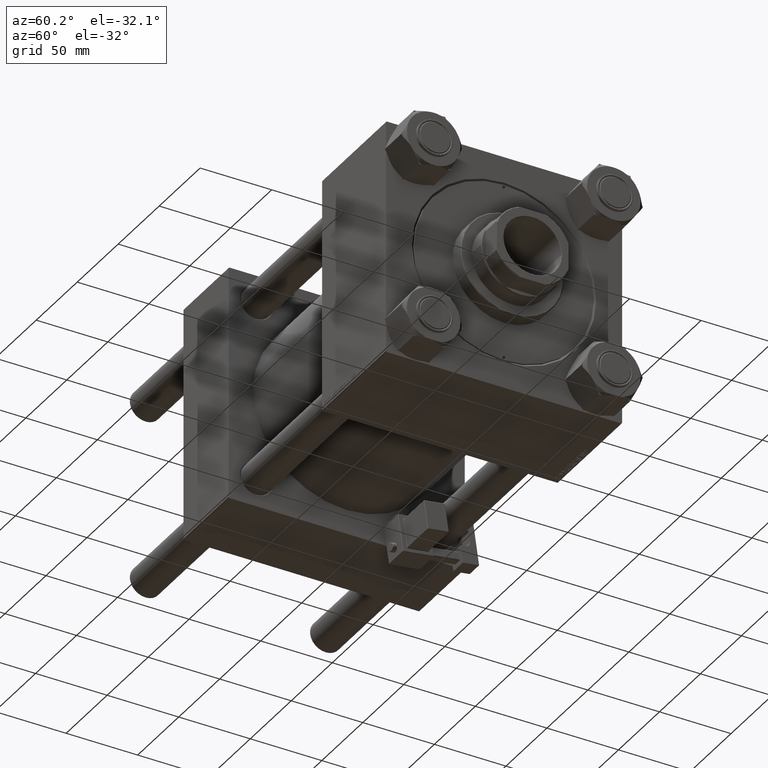
[diagram: clean part render]
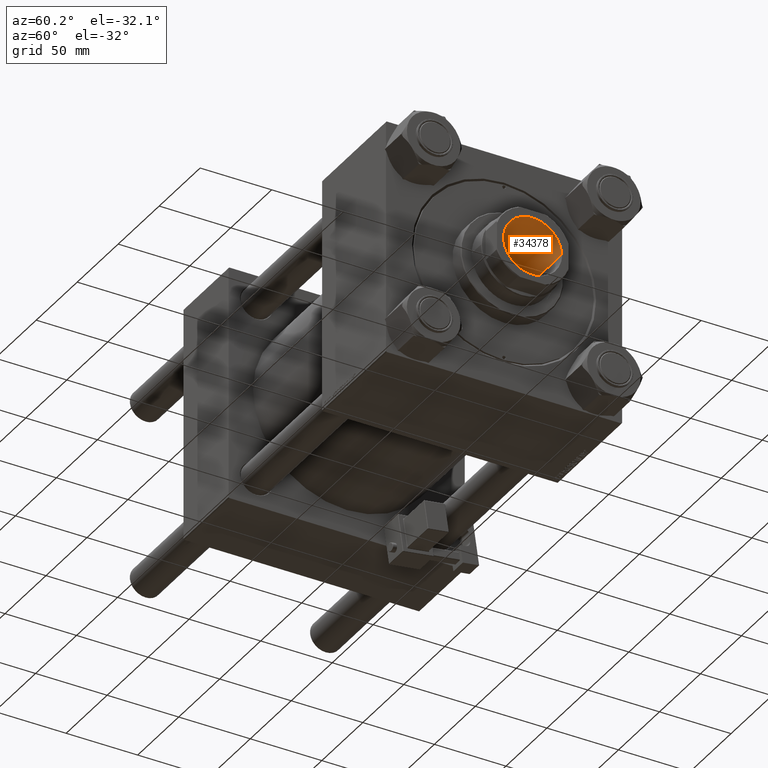
[diagram: same view with one face highlighted and labeled with its STEP entity id]
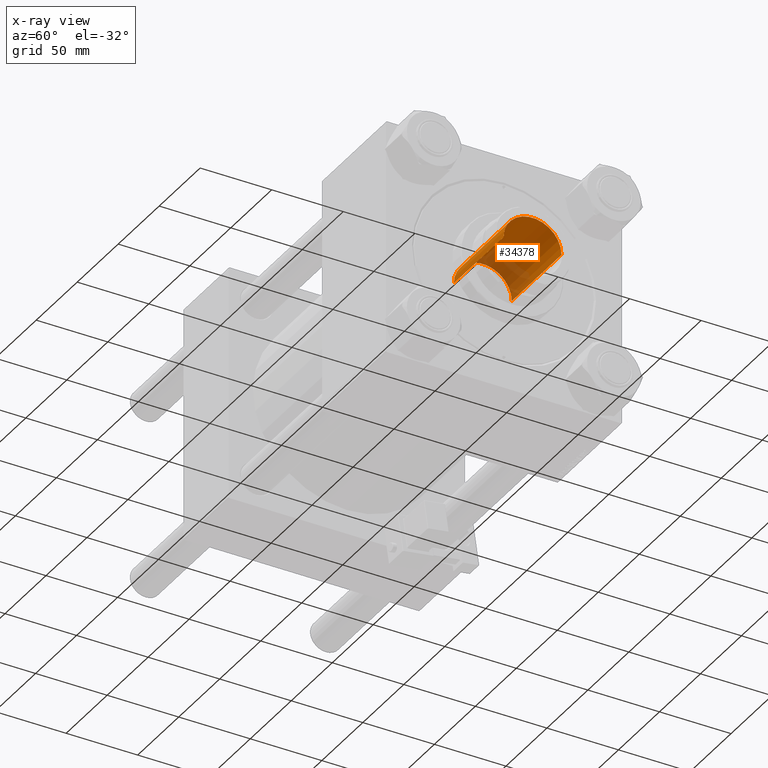
[diagram: x-ray of the same camera — body ghosted, the highlighted face saturated]
A machine part, auxiliary view. The second image highlights one B-rep face of the part: STEP entity #34378.
The next image is the same camera in x-ray: the body ghosted, the highlighted face saturated — about 27% of this face is hidden behind the body in this view.
In plain terms, the highlighted cylindrical surface (edge-blend (fillet) strip) has radius 20.25 mm, axis along (1, 0, -0).
Its self-contained STEP definition (entity closure, byte-faithful):
#1230 = VERTEX_POINT ( 'NONE', #49330 ) ;
#2403 = AXIS2_PLACEMENT_3D ( 'NONE', #20021, #7751, #32261 ) ;
#4091 = CIRCLE ( 'NONE', #2403, 20.24999999999998934 ) ;
#5459 = EDGE_CURVE ( 'NONE', #7274, #43691, #41694, .T. ) ;
#6599 = DIRECTION ( 'NONE',  ( 0.000000000000000000, 0.000000000000000000, 1.000000000000000000 ) ) ;
#7274 = VERTEX_POINT ( 'NONE', #25988 ) ;
#7751 = DIRECTION ( 'NONE',  ( -0.000000000000000000, -0.000000000000000000, 1.000000000000000000 ) ) ;
#7862 = CARTESIAN_POINT ( 'NONE',  ( -20.24999999999999289, 2.479909768273389511E-15, 227.0000000000000000 ) ) ;
#15725 = LINE ( 'NONE', #43968, #39436 ) ;
#16667 = CARTESIAN_POINT ( 'NONE',  ( 0.000000000000000000, 0.000000000000000000, 227.0000000000000000 ) ) ;
#16811 = EDGE_CURVE ( 'NONE', #25164, #43691, #15725, .T. ) ;
#17133 = ORIENTED_EDGE ( 'NONE', *, *, #52580, .T. ) ;
#17782 = AXIS2_PLACEMENT_3D ( 'NONE', #16667, #46424, #32915 ) ;
#20021 = CARTESIAN_POINT ( 'NONE',  ( 0.000000000000000000, 0.000000000000000000, 166.0000000000000000 ) ) ;
#22292 = ORIENTED_EDGE ( 'NONE', *, *, #16811, .F. ) ;
#24124 = DIRECTION ( 'NONE',  ( -0.000000000000000000, -0.000000000000000000, 1.000000000000000000 ) ) ;
#25164 = VERTEX_POINT ( 'NONE', #44439 ) ;
#25542 = AXIS2_PLACEMENT_3D ( 'NONE', #26588, #6599, #51077 ) ;
#25574 = DIRECTION ( 'NONE',  ( -0.000000000000000000, -0.000000000000000000, 1.000000000000000000 ) ) ;
#25988 = CARTESIAN_POINT ( 'NONE',  ( -20.24999999999999289, 2.479909768273389511E-15, 226.6999999999999886 ) ) ;
#26588 = CARTESIAN_POINT ( 'NONE',  ( 0.000000000000000000, 0.000000000000000000, 226.6999999999999886 ) ) ;
#30177 = FACE_OUTER_BOUND ( 'NONE', #30629, .T. ) ;
#30629 = EDGE_LOOP ( 'NONE', ( #36464, #17133, #41697, #22292 ) ) ;
#31989 = EDGE_CURVE ( 'NONE', #1230, #25164, #4091, .T. ) ;
#32261 = DIRECTION ( 'NONE',  ( 1.000000000000000000, 0.000000000000000000, 0.000000000000000000 ) ) ;
#32630 = LINE ( 'NONE', #7862, #49588 ) ;
#32915 = DIRECTION ( 'NONE',  ( 1.000000000000000000, 0.000000000000000000, 0.000000000000000000 ) ) ;
#34378 = ADVANCED_FACE ( 'NONE', ( #30177 ), #36913, .F. ) ;
#36464 = ORIENTED_EDGE ( 'NONE', *, *, #31989, .F. ) ;
#36913 = CYLINDRICAL_SURFACE ( 'NONE', #17782, 20.24999999999999289 ) ;
#39436 = VECTOR ( 'NONE', #25574, 1000.000000000000000 ) ;
#41694 = CIRCLE ( 'NONE', #25542, 20.24999999999999289 ) ;
#41697 = ORIENTED_EDGE ( 'NONE', *, *, #5459, .T. ) ;
#43691 = VERTEX_POINT ( 'NONE', #46172 ) ;
#43968 = CARTESIAN_POINT ( 'NONE',  ( 20.24999999999999289, 0.000000000000000000, 227.0000000000000000 ) ) ;
#44439 = CARTESIAN_POINT ( 'NONE',  ( 20.24999999999998934, 0.000000000000000000, 166.0000000000000000 ) ) ;
#46172 = CARTESIAN_POINT ( 'NONE',  ( 20.24999999999999289, 0.000000000000000000, 226.6999999999999886 ) ) ;
#46424 = DIRECTION ( 'NONE',  ( -0.000000000000000000, -0.000000000000000000, 1.000000000000000000 ) ) ;
#49330 = CARTESIAN_POINT ( 'NONE',  ( -20.24999999999998934, 2.479909768273389117E-15, 166.0000000000000000 ) ) ;
#49588 = VECTOR ( 'NONE', #24124, 1000.000000000000000 ) ;
#51077 = DIRECTION ( 'NONE',  ( 1.000000000000000000, 0.000000000000000000, 0.000000000000000000 ) ) ;
#52580 = EDGE_CURVE ( 'NONE', #1230, #7274, #32630, .T. ) ;